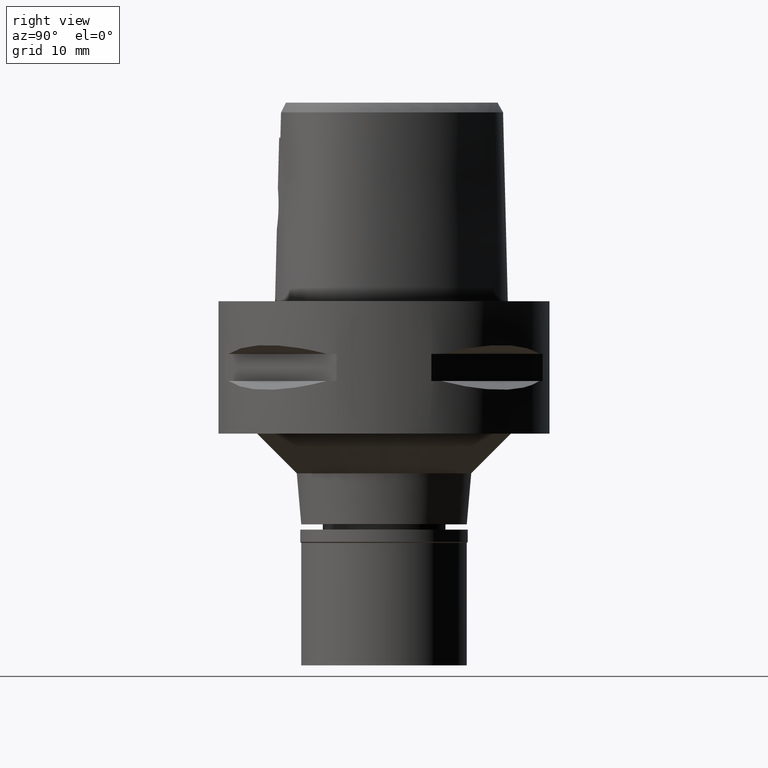
[diagram: clean part render]
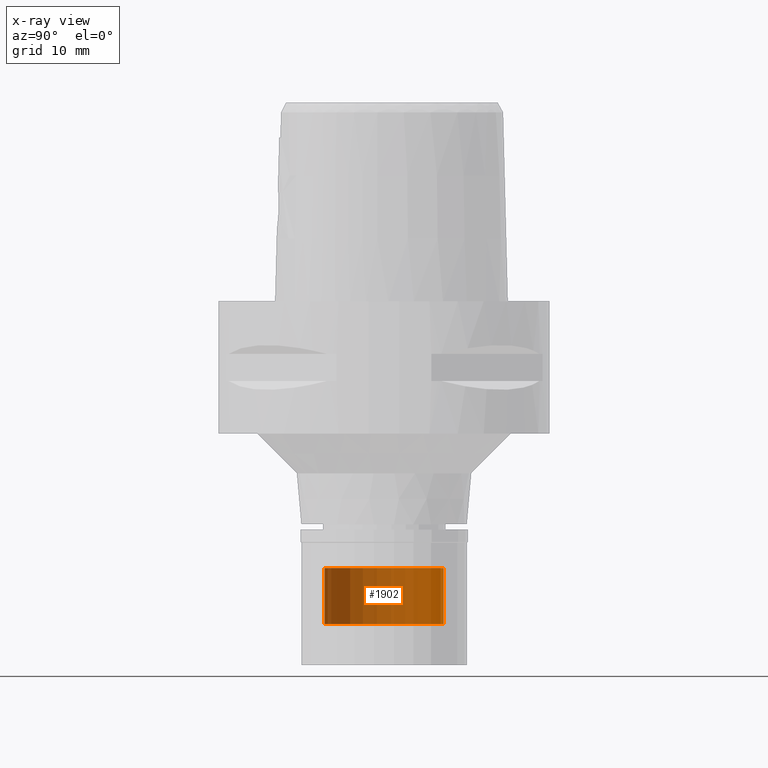
[diagram: x-ray — body ghosted, one internal face saturated and labeled with its STEP entity id]
A machine part, right view, then the same camera in x-ray: the body is ghosted and one INTERNAL B-rep face — a face not visible from any outside direction — is saturated and labeled: STEP entity #1902.
In plain terms, the highlighted cylindrical surface (partial cylindrical patch) has radius 9 mm, axis along (0, 0, -1).
Its self-contained STEP definition (entity closure, byte-faithful):
#17 = EDGE_CURVE ( 'NONE', #1888, #2412, #1330, .T. ) ;
#26 = DIRECTION ( 'NONE',  ( 0.0000000000000000000, -1.000000000000000000, 0.0000000000000000000 ) ) ;
#414 = DIRECTION ( 'NONE',  ( 0.0000000000000000000, 1.000000000000000000, 0.0000000000000000000 ) ) ;
#442 = LINE ( 'NONE', #3694, #3780 ) ;
#467 = DIRECTION ( 'NONE',  ( 0.0000000000000000000, 0.0000000000000000000, -1.000000000000000000 ) ) ;
#806 = CARTESIAN_POINT ( 'NONE',  ( 0.0000000000000000000, 1.254528181046999847E-14, 2.439999999999999947 ) ) ;
#816 = DIRECTION ( 'NONE',  ( 0.0000000000000000000, 0.0000000000000000000, -1.000000000000000000 ) ) ;
#823 = ORIENTED_EDGE ( 'NONE', *, *, #17, .T. ) ;
#1051 = CARTESIAN_POINT ( 'NONE',  ( 0.0000000000000000000, 1.254528181046999847E-14, -40.30000000000000426 ) ) ;
#1178 = AXIS2_PLACEMENT_3D ( 'NONE', #1051, #816, #26 ) ;
#1246 = DIRECTION ( 'NONE',  ( 0.0000000000000000000, 0.0000000000000000000, -1.000000000000000000 ) ) ;
#1330 = CIRCLE ( 'NONE', #1178, 9.000000000000000000 ) ;
#1417 = VECTOR ( 'NONE', #1246, 1000.000000000000000 ) ;
#1468 = CARTESIAN_POINT ( 'NONE',  ( 0.0000000000000000000, -9.000000000000000000, -48.80000000000000426 ) ) ;
#1507 = EDGE_CURVE ( 'NONE', #1888, #2298, #3192, .T. ) ;
#1756 = CARTESIAN_POINT ( 'NONE',  ( 0.0000000000000000000, 9.000000000000000000, -48.80000000000000426 ) ) ;
#1888 = VERTEX_POINT ( 'NONE', #3051 ) ;
#1902 = ADVANCED_FACE ( 'NONE', ( #2299 ), #3006, .T. ) ;
#1938 = AXIS2_PLACEMENT_3D ( 'NONE', #3450, #3706, #414 ) ;
#2298 = VERTEX_POINT ( 'NONE', #1468 ) ;
#2299 = FACE_OUTER_BOUND ( 'NONE', #4029, .T. ) ;
#2412 = VERTEX_POINT ( 'NONE', #4051 ) ;
#2461 = CARTESIAN_POINT ( 'NONE',  ( 0.0000000000000000000, -9.000000000000000000, -40.30000000000000426 ) ) ;
#2585 = ORIENTED_EDGE ( 'NONE', *, *, #1507, .F. ) ;
#2642 = DIRECTION ( 'NONE',  ( 0.0000000000000000000, -1.000000000000000000, 0.0000000000000000000 ) ) ;
#2709 = ORIENTED_EDGE ( 'NONE', *, *, #3249, .T. ) ;
#2806 = EDGE_CURVE ( 'NONE', #4632, #2298, #3338, .T. ) ;
#3006 = CYLINDRICAL_SURFACE ( 'NONE', #4255, 9.000000000000000000 ) ;
#3051 = CARTESIAN_POINT ( 'NONE',  ( 0.0000000000000000000, -9.000000000000000000, -40.30000000000000426 ) ) ;
#3192 = LINE ( 'NONE', #2461, #1417 ) ;
#3249 = EDGE_CURVE ( 'NONE', #2412, #4632, #442, .T. ) ;
#3338 = CIRCLE ( 'NONE', #1938, 9.000000000000000000 ) ;
#3346 = DIRECTION ( 'NONE',  ( 0.0000000000000000000, 0.0000000000000000000, -1.000000000000000000 ) ) ;
#3450 = CARTESIAN_POINT ( 'NONE',  ( 0.0000000000000000000, 1.254528181046999847E-14, -48.80000000000000426 ) ) ;
#3694 = CARTESIAN_POINT ( 'NONE',  ( 0.0000000000000000000, 9.000000000000000000, -40.30000000000000426 ) ) ;
#3706 = DIRECTION ( 'NONE',  ( 0.0000000000000000000, 0.0000000000000000000, 1.000000000000000000 ) ) ;
#3780 = VECTOR ( 'NONE', #3346, 1000.000000000000000 ) ;
#4029 = EDGE_LOOP ( 'NONE', ( #4043, #2585, #823, #2709 ) ) ;
#4043 = ORIENTED_EDGE ( 'NONE', *, *, #2806, .T. ) ;
#4051 = CARTESIAN_POINT ( 'NONE',  ( 0.0000000000000000000, 9.000000000000000000, -40.30000000000000426 ) ) ;
#4255 = AXIS2_PLACEMENT_3D ( 'NONE', #806, #467, #2642 ) ;
#4632 = VERTEX_POINT ( 'NONE', #1756 ) ;